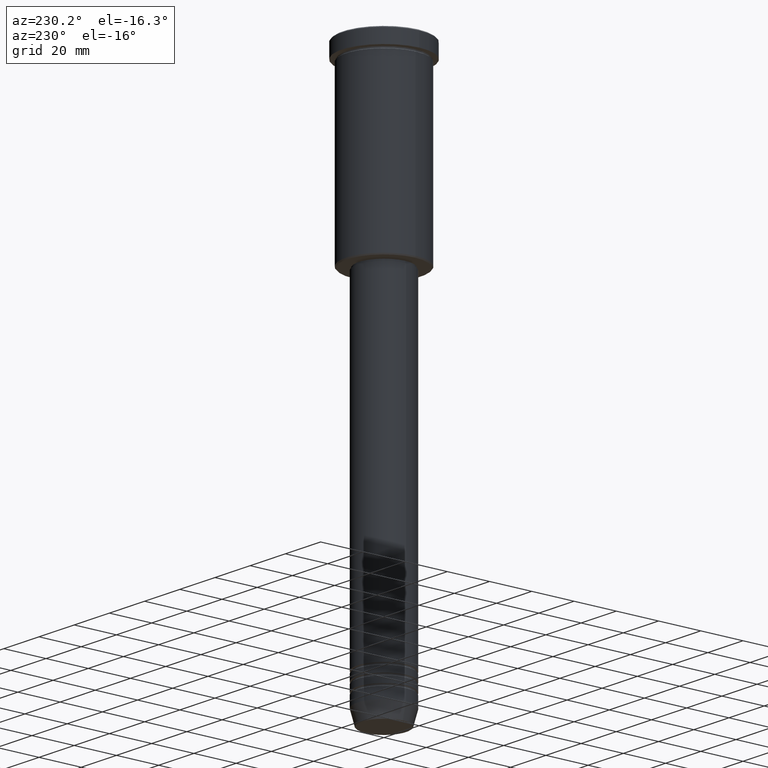
[diagram: clean part render]
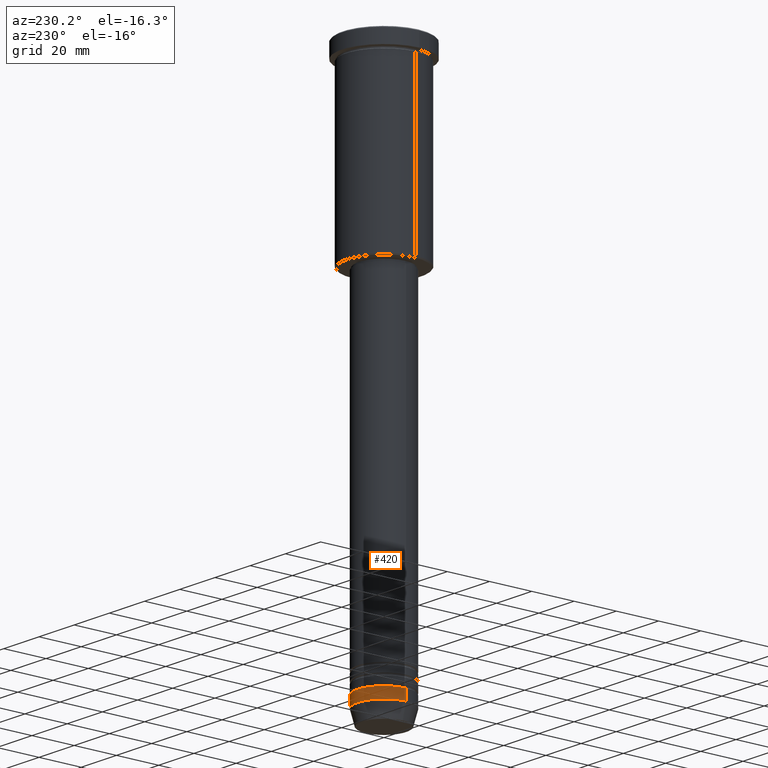
[diagram: same view with one face highlighted and labeled with its STEP entity id]
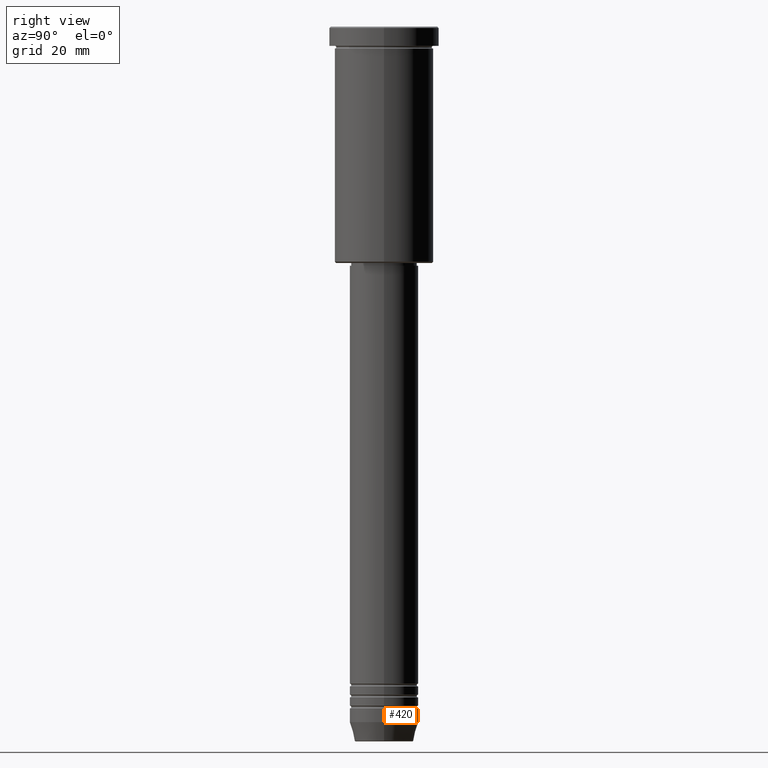
[diagram: same view with one face highlighted and labeled with its STEP entity id]
A machine part, auxiliary view. The second image highlights one B-rep face of the part: STEP entity #420.
A second angle (right view) of the same face is appended — the face is thin or edge-on in the first view.
In plain terms, the highlighted cylindrical surface (edge-blend (fillet) strip) has radius 12.5 mm, axis along (-0, -0, 1).
Its self-contained STEP definition (entity closure, byte-faithful):
#13 = LINE ( 'NONE', #288, #197 ) ;
#18 = DIRECTION ( 'NONE',  ( -0.000000000000000000, -0.000000000000000000, 1.000000000000000000 ) ) ;
#68 = VERTEX_POINT ( 'NONE', #937 ) ;
#95 = CARTESIAN_POINT ( 'NONE',  ( -12.50000000000000000, 1.530808498934191521E-15, -253.0000000000000000 ) ) ;
#104 = CARTESIAN_POINT ( 'NONE',  ( 12.50000000000000000, 0.000000000000000000, -253.0000000000000000 ) ) ;
#151 = VERTEX_POINT ( 'NONE', #104 ) ;
#162 = CARTESIAN_POINT ( 'NONE',  ( 0.000000000000000000, 0.000000000000000000, -248.0000000000000000 ) ) ;
#194 = CIRCLE ( 'NONE', #507, 12.50000000000000000 ) ;
#197 = VECTOR ( 'NONE', #838, 1000.000000000000000 ) ;
#210 = ORIENTED_EDGE ( 'NONE', *, *, #289, .T. ) ;
#278 = CIRCLE ( 'NONE', #963, 12.50000000000000000 ) ;
#285 = DIRECTION ( 'NONE',  ( -0.000000000000000000, -0.000000000000000000, 1.000000000000000000 ) ) ;
#288 = CARTESIAN_POINT ( 'NONE',  ( 12.50000000000000000, 0.000000000000000000, 0.000000000000000000 ) ) ;
#289 = EDGE_CURVE ( 'NONE', #151, #837, #278, .T. ) ;
#373 = FACE_OUTER_BOUND ( 'NONE', #916, .T. ) ;
#384 = LINE ( 'NONE', #1025, #1115 ) ;
#409 = ORIENTED_EDGE ( 'NONE', *, *, #426, .F. ) ;
#420 = ADVANCED_FACE ( 'NONE', ( #373 ), #1063, .T. ) ;
#426 = EDGE_CURVE ( 'NONE', #68, #658, #194, .T. ) ;
#507 = AXIS2_PLACEMENT_3D ( 'NONE', #162, #807, #564 ) ;
#564 = DIRECTION ( 'NONE',  ( 1.000000000000000000, 0.000000000000000000, 0.000000000000000000 ) ) ;
#617 = CARTESIAN_POINT ( 'NONE',  ( -12.50000000000000000, 1.530808498934191521E-15, -248.0000000000000000 ) ) ;
#625 = CARTESIAN_POINT ( 'NONE',  ( 0.000000000000000000, 0.000000000000000000, 0.000000000000000000 ) ) ;
#628 = ORIENTED_EDGE ( 'NONE', *, *, #997, .T. ) ;
#658 = VERTEX_POINT ( 'NONE', #617 ) ;
#807 = DIRECTION ( 'NONE',  ( -0.000000000000000000, -0.000000000000000000, 1.000000000000000000 ) ) ;
#837 = VERTEX_POINT ( 'NONE', #95 ) ;
#838 = DIRECTION ( 'NONE',  ( -0.000000000000000000, -0.000000000000000000, 1.000000000000000000 ) ) ;
#876 = DIRECTION ( 'NONE',  ( 1.000000000000000000, 0.000000000000000000, 0.000000000000000000 ) ) ;
#887 = AXIS2_PLACEMENT_3D ( 'NONE', #625, #285, #987 ) ;
#916 = EDGE_LOOP ( 'NONE', ( #210, #628, #409, #995 ) ) ;
#937 = CARTESIAN_POINT ( 'NONE',  ( 12.50000000000000000, 0.000000000000000000, -248.0000000000000000 ) ) ;
#963 = AXIS2_PLACEMENT_3D ( 'NONE', #1130, #1050, #876 ) ;
#987 = DIRECTION ( 'NONE',  ( 1.000000000000000000, 0.000000000000000000, 0.000000000000000000 ) ) ;
#992 = EDGE_CURVE ( 'NONE', #151, #68, #13, .T. ) ;
#995 = ORIENTED_EDGE ( 'NONE', *, *, #992, .F. ) ;
#997 = EDGE_CURVE ( 'NONE', #837, #658, #384, .T. ) ;
#1025 = CARTESIAN_POINT ( 'NONE',  ( -12.50000000000000000, 1.530808498934191521E-15, 0.000000000000000000 ) ) ;
#1050 = DIRECTION ( 'NONE',  ( -0.000000000000000000, -0.000000000000000000, 1.000000000000000000 ) ) ;
#1063 = CYLINDRICAL_SURFACE ( 'NONE', #887, 12.50000000000000000 ) ;
#1115 = VECTOR ( 'NONE', #18, 1000.000000000000000 ) ;
#1130 = CARTESIAN_POINT ( 'NONE',  ( 0.000000000000000000, 0.000000000000000000, -253.0000000000000000 ) ) ;